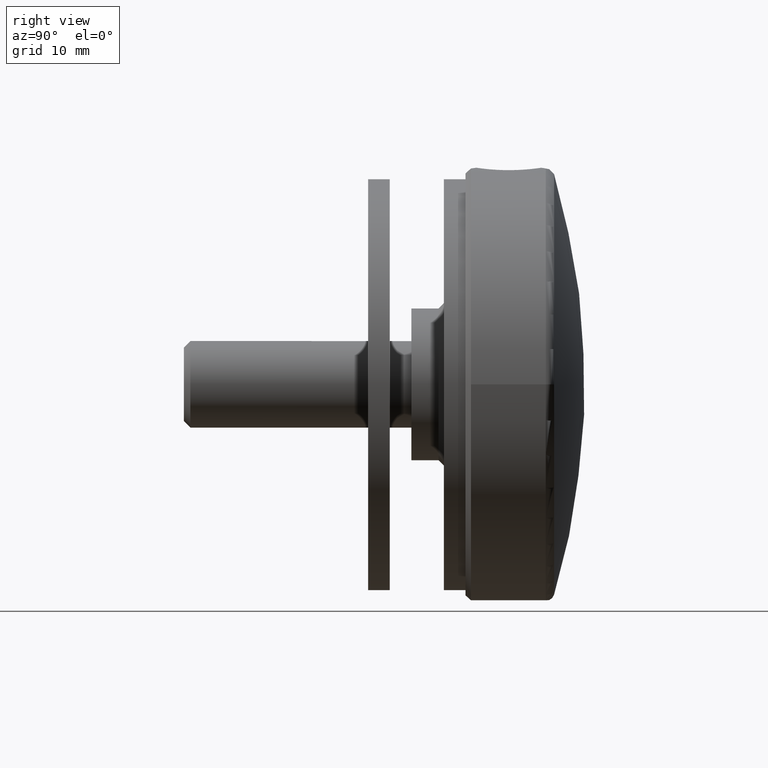
[diagram: clean part render]
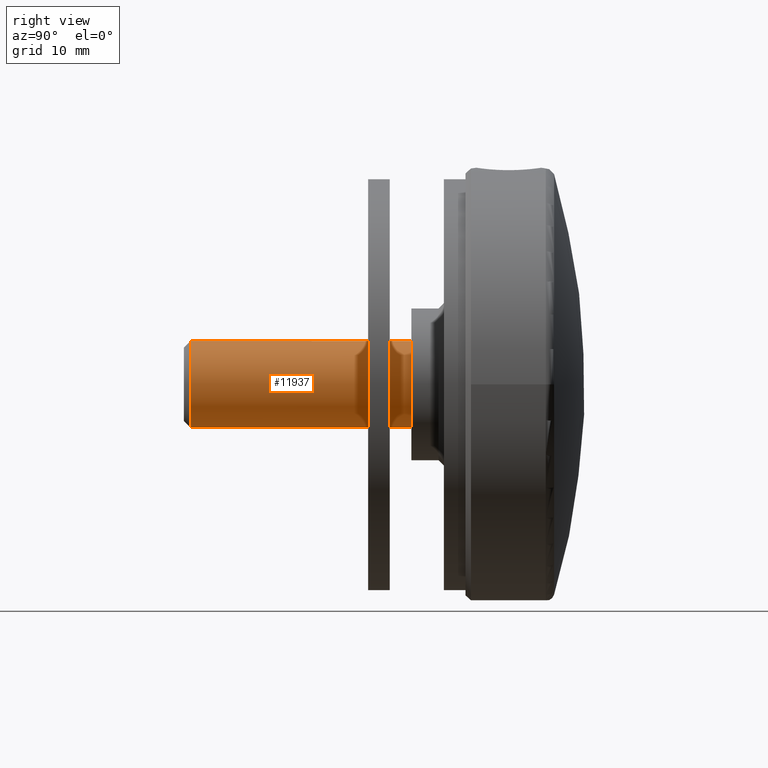
[diagram: same view with one face highlighted and labeled with its STEP entity id]
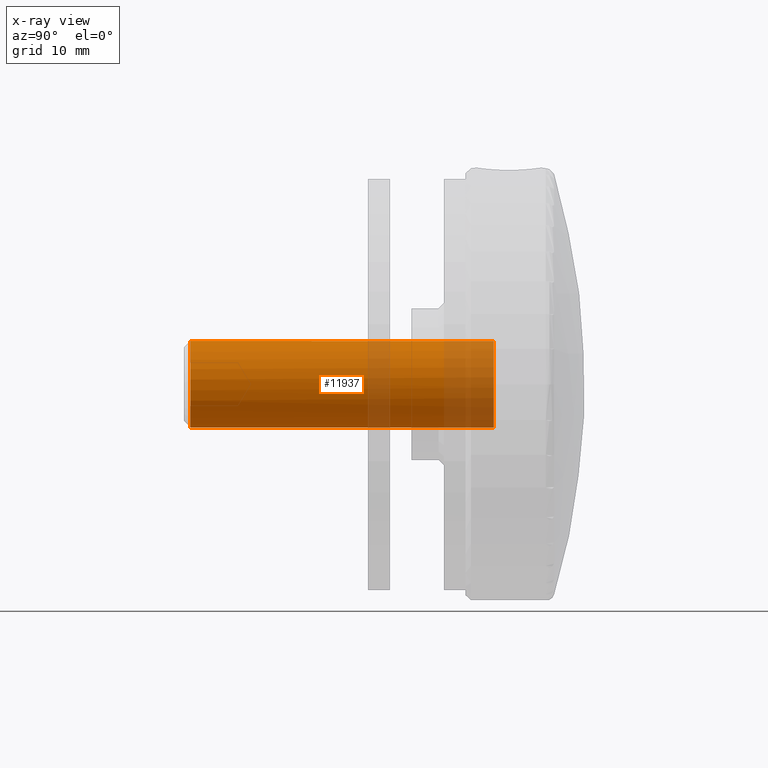
[diagram: x-ray of the same camera — body ghosted, the highlighted face saturated]
A machine part, right view. The second image highlights one B-rep face of the part: STEP entity #11937.
The next image is the same camera in x-ray: the body ghosted, the highlighted face saturated — about 24% of this face is hidden behind the body in this view.
In plain terms, the highlighted cylindrical surface (bore or boss wall) has radius 4 mm, axis along (-0, 1, 0).
Its self-contained STEP definition (entity closure, byte-faithful):
#338 = DIRECTION ( 'NONE',  ( 0.000000000000000000, 0.000000000000000000, -1.000000000000000000 ) ) ;
#1998 = CARTESIAN_POINT ( 'NONE',  ( 1.399999999999987921, -4.538988261647317945E-17, 0.000000000000000000 ) ) ;
#2128 = ORIENTED_EDGE ( 'NONE', *, *, #6816, .F. ) ;
#3007 = DIRECTION ( 'NONE',  ( -5.421010862427522170E-17, -1.000000000000000000, 0.000000000000000000 ) ) ;
#3369 = CARTESIAN_POINT ( 'NONE',  ( 29.39999999999999503, 0.000000000000000000, -4.000000000000000000 ) ) ;
#3751 = EDGE_CURVE ( 'NONE', #5184, #5184, #4305, .T. ) ;
#4305 = CIRCLE ( 'NONE', #12141, 4.000000000000000000 ) ;
#5184 = VERTEX_POINT ( 'NONE', #3369 ) ;
#5636 = CARTESIAN_POINT ( 'NONE',  ( 29.39999999999999503, 0.000000000000000000, 0.000000000000000000 ) ) ;
#6672 = DIRECTION ( 'NONE',  ( -1.000000000000000000, 0.000000000000000000, 0.000000000000000000 ) ) ;
#6677 = CARTESIAN_POINT ( 'NONE',  ( 1.399999999999987699, -4.000000000000000000, 0.000000000000000000 ) ) ;
#6816 = EDGE_CURVE ( 'NONE', #8820, #8820, #8087, .T. ) ;
#7132 = CARTESIAN_POINT ( 'NONE',  ( 30.00000000000000000, 0.000000000000000000, 0.000000000000000000 ) ) ;
#8087 = CIRCLE ( 'NONE', #12162, 4.000000000000000000 ) ;
#8820 = VERTEX_POINT ( 'NONE', #6677 ) ;
#9107 = DIRECTION ( 'NONE',  ( -1.000000000000000000, -0.000000000000000000, -0.000000000000000000 ) ) ;
#9679 = EDGE_LOOP ( 'NONE', ( #9828 ) ) ;
#9707 = EDGE_LOOP ( 'NONE', ( #2128 ) ) ;
#9828 = ORIENTED_EDGE ( 'NONE', *, *, #3751, .T. ) ;
#10040 = AXIS2_PLACEMENT_3D ( 'NONE', #7132, #9107, #13262 ) ;
#10330 = CYLINDRICAL_SURFACE ( 'NONE', #10040, 4.000000000000000000 ) ;
#11422 = DIRECTION ( 'NONE',  ( -1.000000000000000000, 3.242134472605255366E-17, -0.000000000000000000 ) ) ;
#11491 = FACE_OUTER_BOUND ( 'NONE', #9679, .T. ) ;
#11937 = ADVANCED_FACE ( 'NONE', ( #11491, #13148 ), #10330, .T. ) ;
#12141 = AXIS2_PLACEMENT_3D ( 'NONE', #5636, #6672, #338 ) ;
#12162 = AXIS2_PLACEMENT_3D ( 'NONE', #1998, #11422, #3007 ) ;
#13148 = FACE_OUTER_BOUND ( 'NONE', #9707, .T. ) ;
#13262 = DIRECTION ( 'NONE',  ( 0.000000000000000000, 0.000000000000000000, 1.000000000000000000 ) ) ;